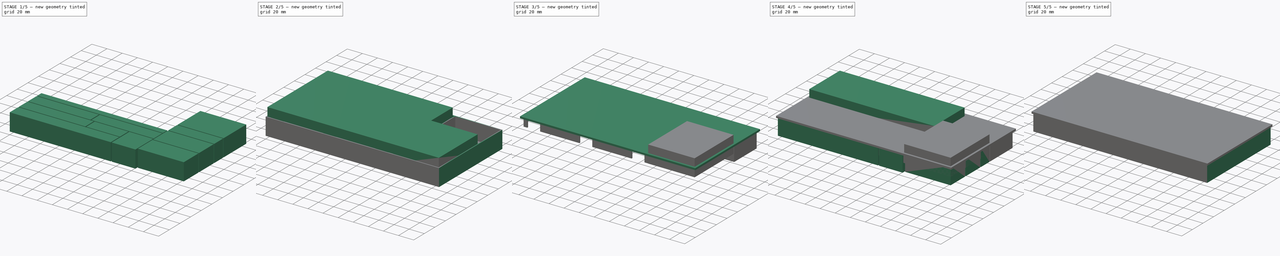
[diagram: build sequence overview — one tinted view per stage of 5, left to right]
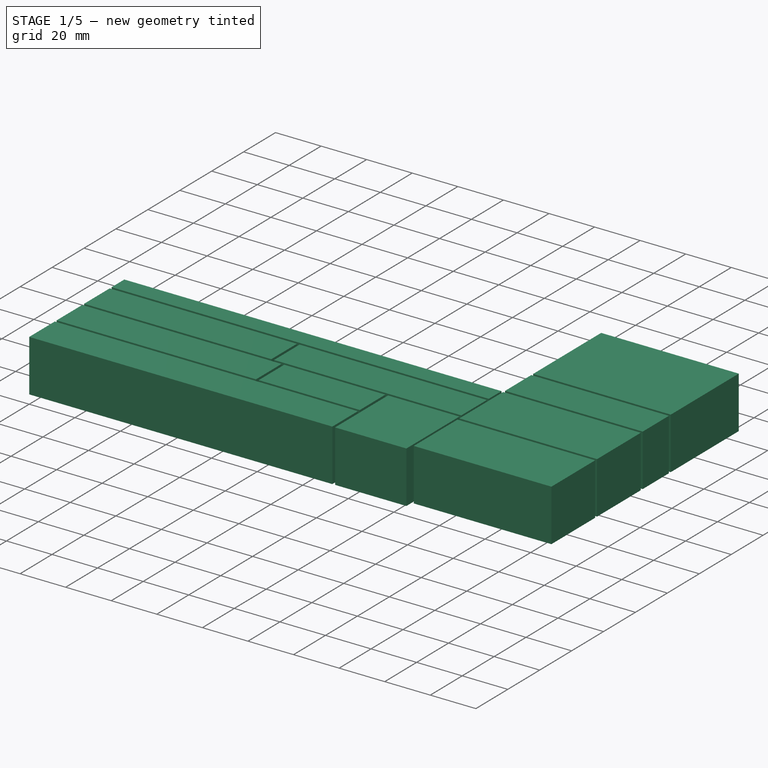
[diagram: stage 1 of 5 — iso view after this stage's code; geometry added in this stage tinted green]
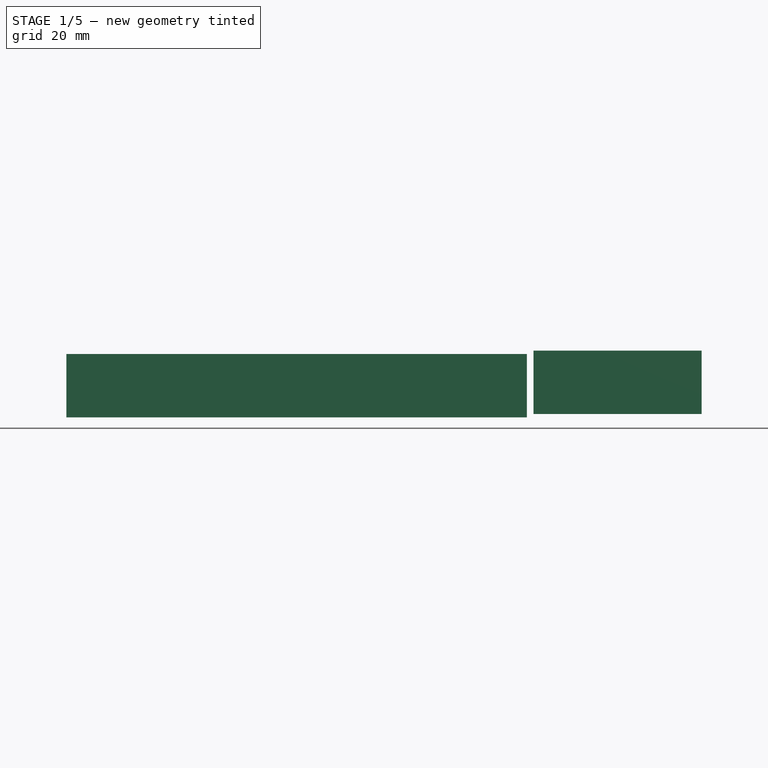
[diagram: stage 1 of 5 — front view after this stage's code; geometry added in this stage tinted green]
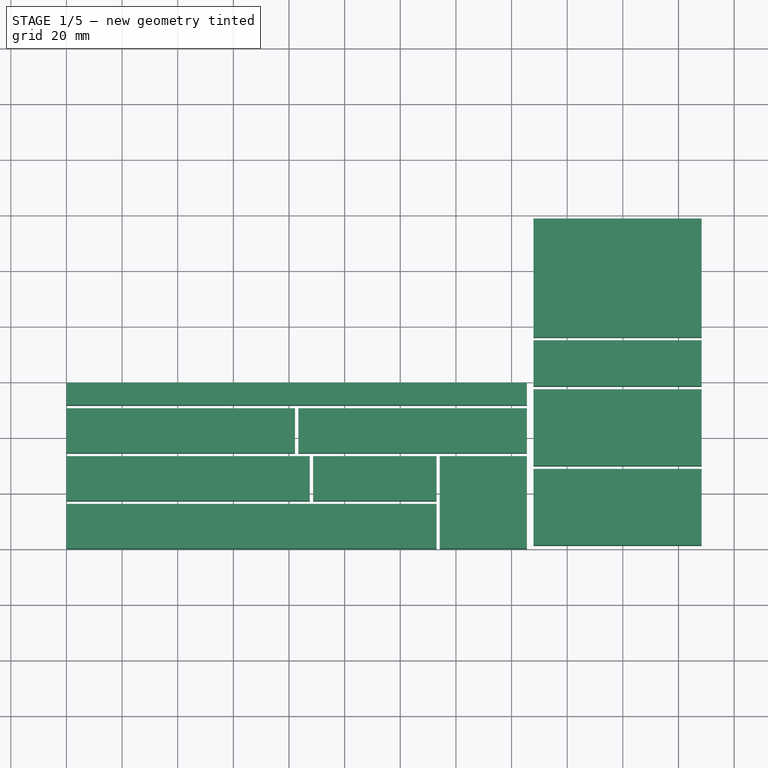
[diagram: stage 1 of 5 — top view after this stage's code; geometry added in this stage tinted green]
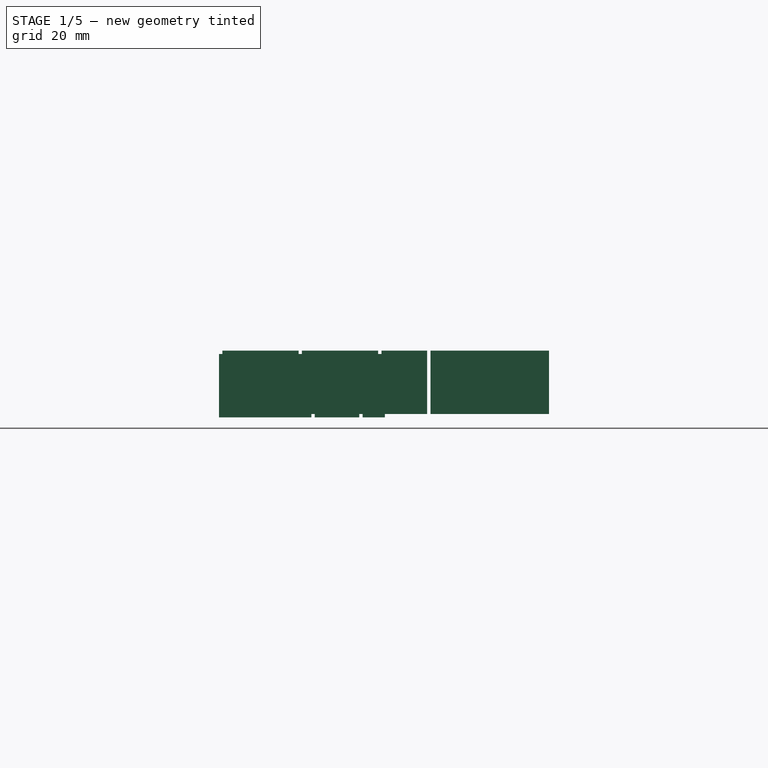
[diagram: stage 1 of 5 — right view after this stage's code; geometry added in this stage tinted green]
FCSTD DOCUMENT  (FreeCAD 0.17R13519 (Git))
Label: Breadboard Case
License: All rights reserved
LicenseURL: http://en.wikipedia.org/wiki/All_rights_reserved
objects: Part::Box×43, Part::MultiFuse×12, Part::Cut×2, Sketcher::SketchObject×2, Part::Extrusion×2, App::Part×2, Part::Common×1
note: 62 computed .brp shape members not serialized (recipe doc carries the construction recipe); baked Part::Feature solids carry a one-line shape summary decoded from their .brp

FEATURE [Part::Box] cube032
  AttacherType = Attacher::AttachEngine3D
  Height = 22.8
  Length = 133
  Width = 16
FEATURE [Part::Box] cube033
  AttacherType = Attacher::AttachEngine3D
  Height = 22.8
  Length = 87.4667
  Placement = pos=(0,17.2,0) rot=(0,0,1;0rad)
  Width = 16
FEATURE [Part::Box] cube034
  AttacherType = Attacher::AttachEngine3D
  Height = 22.8
  Length = 31.3
  Placement = pos=(134.2,0,0) rot=(0,0,1;0rad)
  Width = 33.2
FEATURE [Part::Box] cube035
  AttacherType = Attacher::AttachEngine3D
  Height = 22.8
  Length = 44.3333
  Placement = pos=(88.6667,17.2,0) rot=(0,0,1;0rad)
  Width = 16
FEATURE [Part::Box] cube036
  AttacherType = Attacher::AttachEngine3D
  Height = 22.8
  Length = 82.15
  Placement = pos=(0,34.4,0) rot=(0,0,1;0rad)
  Width = 16
FEATURE [Part::Box] cube037
  AttacherType = Attacher::AttachEngine3D
  Height = 22.8
  Length = 82.15
  Placement = pos=(83.35,34.4,0) rot=(0,0,1;0rad)
  Width = 16
FEATURE [Part::Box] cube038
  AttacherType = Attacher::AttachEngine3D
  Height = 22.8
  Length = 165.5
  Placement = pos=(0,51.6,0) rot=(0,0,1;0rad)
  Width = 8
FEATURE [Part::Box] cube039
  AttacherType = Attacher::AttachEngine3D
  Height = 22.8
  Length = 60.4
  Width = 27.4
FEATURE [Part::Box] cube040
  AttacherType = Attacher::AttachEngine3D
  Height = 22.8
  Length = 60.4
  Placement = pos=(0,28.6,0) rot=(0,0,1;0rad)
  Width = 27.4
FEATURE [Part::Box] cube041
  AttacherType = Attacher::AttachEngine3D
  Height = 22.8
  Length = 60.4
  Placement = pos=(0,57.2,0) rot=(0,0,1;0rad)
  Width = 16.4
FEATURE [Part::MultiFuse] Matrix_Union005
  Placement = pos=(167.9,1.2,1.2) rot=(0,0,1;0rad)
  Shapes = -> [cube039,cube040,cube041]
FEATURE [Part::Box] cube042
  AttacherType = Attacher::AttachEngine3D
  Height = 22.8
  Length = 60.4
  Placement = pos=(167.9,76,1.2) rot=(0,0,1;0rad)
  Width = 42.6
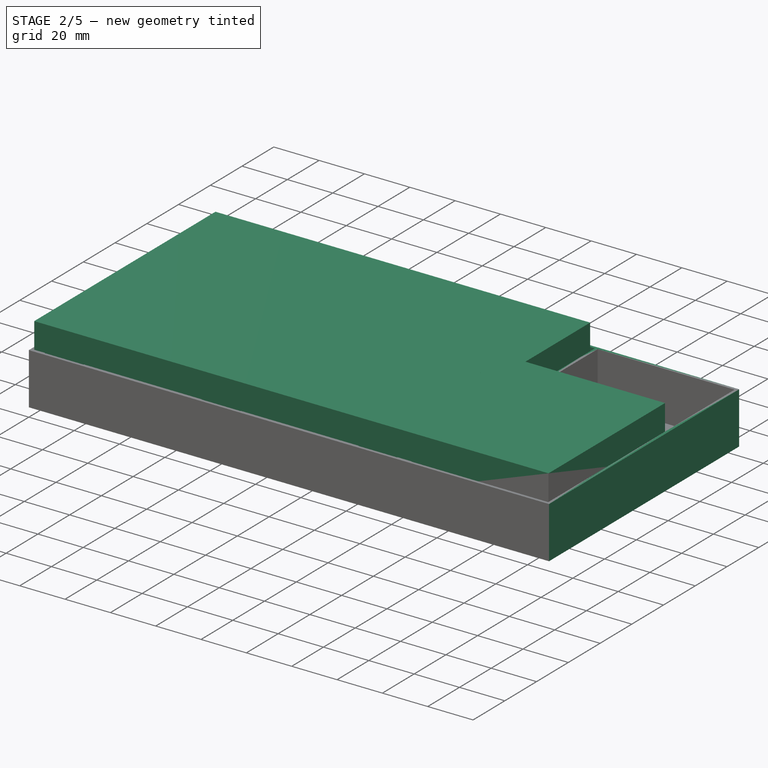
[diagram: stage 2 of 5 — iso view after this stage's code; geometry added in this stage tinted green]
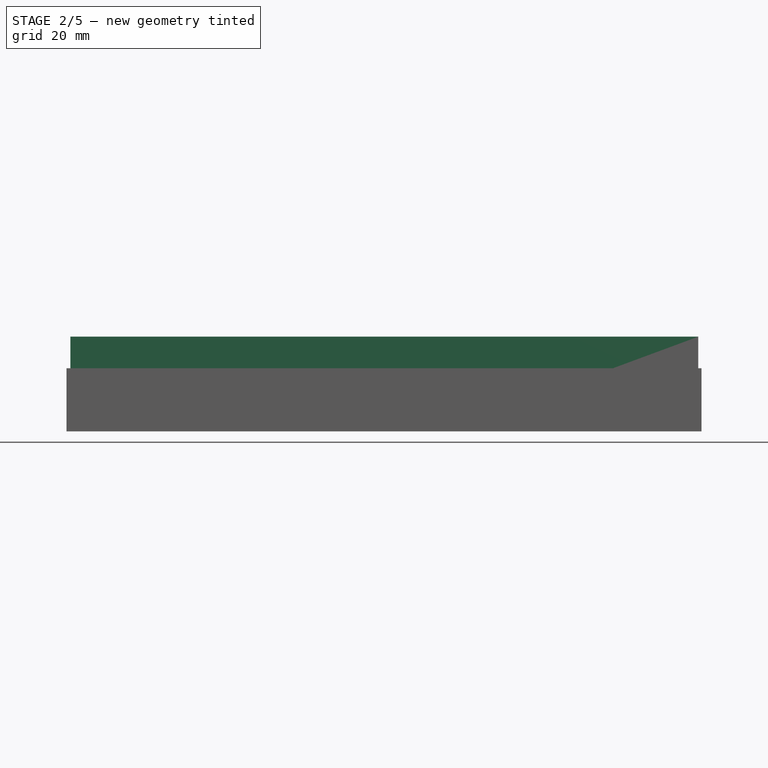
[diagram: stage 2 of 5 — front view after this stage's code; geometry added in this stage tinted green]
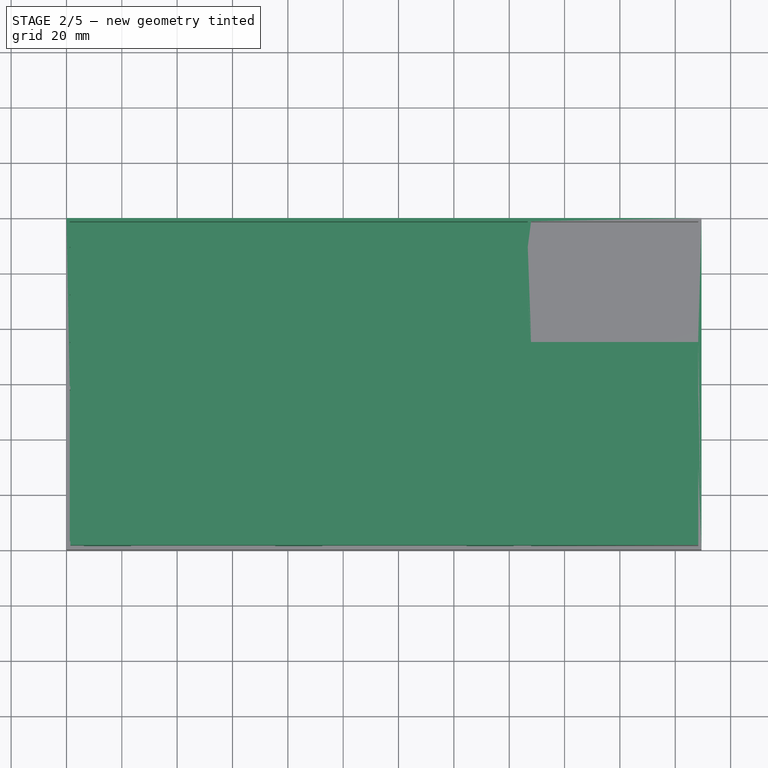
[diagram: stage 2 of 5 — top view after this stage's code; geometry added in this stage tinted green]
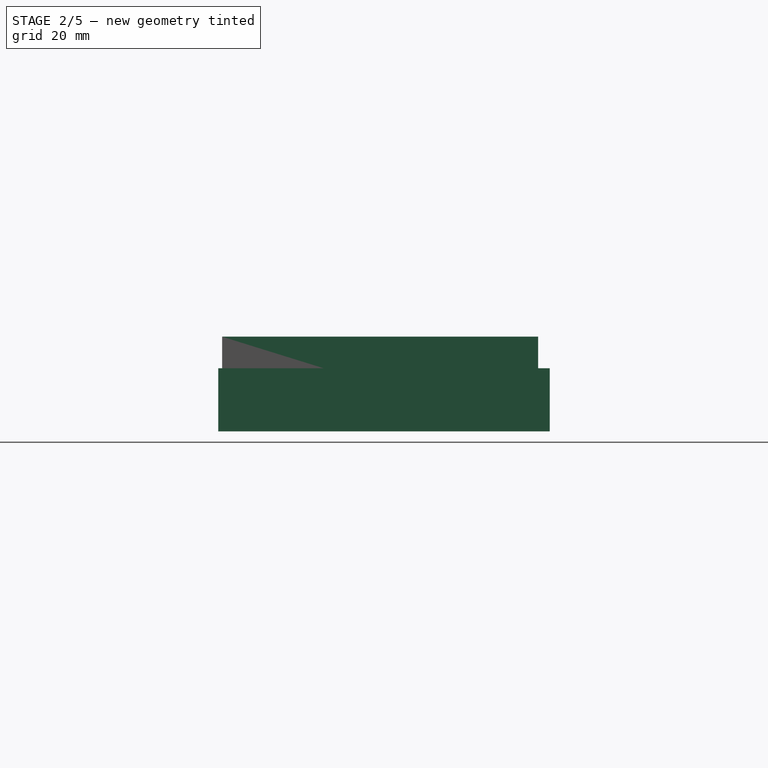
[diagram: stage 2 of 5 — right view after this stage's code; geometry added in this stage tinted green]
FEATURE [Part::Box] cube024
  AttacherType = Attacher::AttachEngine3D
  Height = 22.8
  Length = 165.3
  Placement = pos=(1.4,1.4,11.4) rot=(0,0,1;0rad)
  Width = 56.4
FEATURE [Part::Box] cube025
  AttacherType = Attacher::AttachEngine3D
  Height = 22.8
  Length = 165.3
  Placement = pos=(1.4,57.8,11.4) rot=(0,0,1;0rad)
  Width = 57.8
FEATURE [Part::Box] cube026
  AttacherType = Attacher::AttachEngine3D
  Height = 22.8
  Length = 61.6
  Placement = pos=(166.7,1.4,11.4) rot=(0,0,1;0rad)
  Width = 73.4
FEATURE [Part::Box] cube027
  AttacherType = Attacher::AttachEngine3D
  Height = 22.8
  Length = 229.5
  Width = 119.8
FEATURE [Part::Box] cube028
  AttacherType = Attacher::AttachEngine3D
  Height = 22.8
  Length = 165.5
  Width = 54.9
FEATURE [Part::Box] cube029
  AttacherType = Attacher::AttachEngine3D
  Height = 22.8
  Length = 17
  Placement = pos=(5.1,-1.7,0) rot=(0,0,1;0rad)
  Width = 1.7
FEATURE [Part::Box] cube030
  AttacherType = Attacher::AttachEngine3D
  Height = 22.8
  Length = 17
  Placement = pos=(74.25,-1.7,0) rot=(0,0,1;0rad)
  Width = 1.7
FEATURE [Part::Box] cube031
  AttacherType = Attacher::AttachEngine3D
  Height = 22.8
  Length = 17
  Placement = pos=(143.4,-1.7,0) rot=(0,0,1;0rad)
  Width = 1.7
FEATURE [Part::MultiFuse] Matrix_Union003
  Placement = pos=(1.2,2.9,1.2) rot=(0,0,1;0rad)
  Shapes = -> [cube028,cube029,cube030,cube031]
FEATURE [Part::MultiFuse] Matrix_Union004
  Placement = pos=(1.2,59,1.2) rot=(0,0,1;0rad)
  Shapes = -> [cube032,cube033,cube034,cube035,cube036,cube037,cube038]
FEATURE [Part::MultiFuse] union002
  Shapes = -> [Matrix_Union003,Matrix_Union004,Matrix_Union005,cube042]
FEATURE [Part::Cut] difference001
  Base = -> cube027
  Tool = -> union002
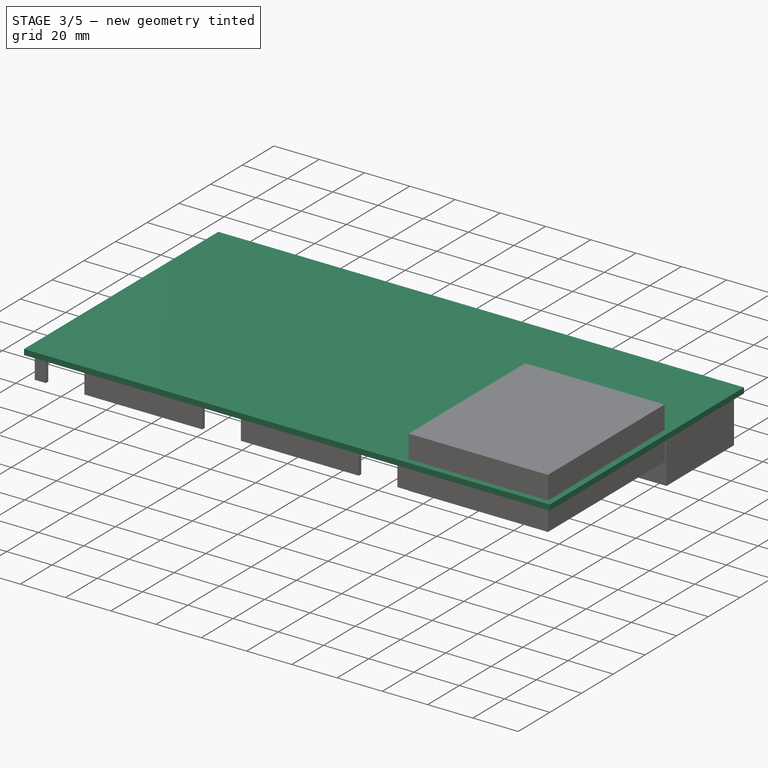
[diagram: stage 3 of 5 — iso view after this stage's code; geometry added in this stage tinted green]
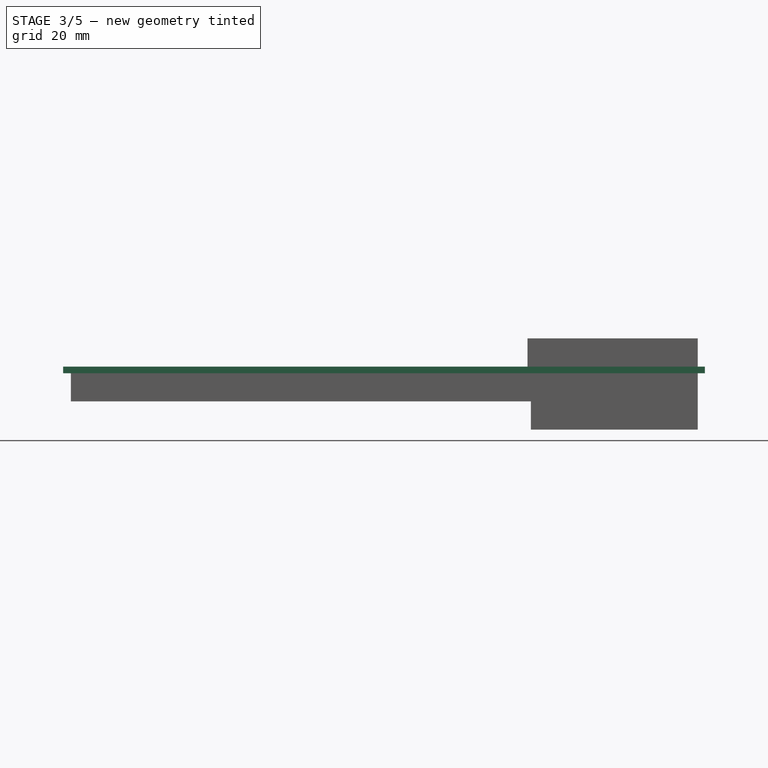
[diagram: stage 3 of 5 — front view after this stage's code; geometry added in this stage tinted green]
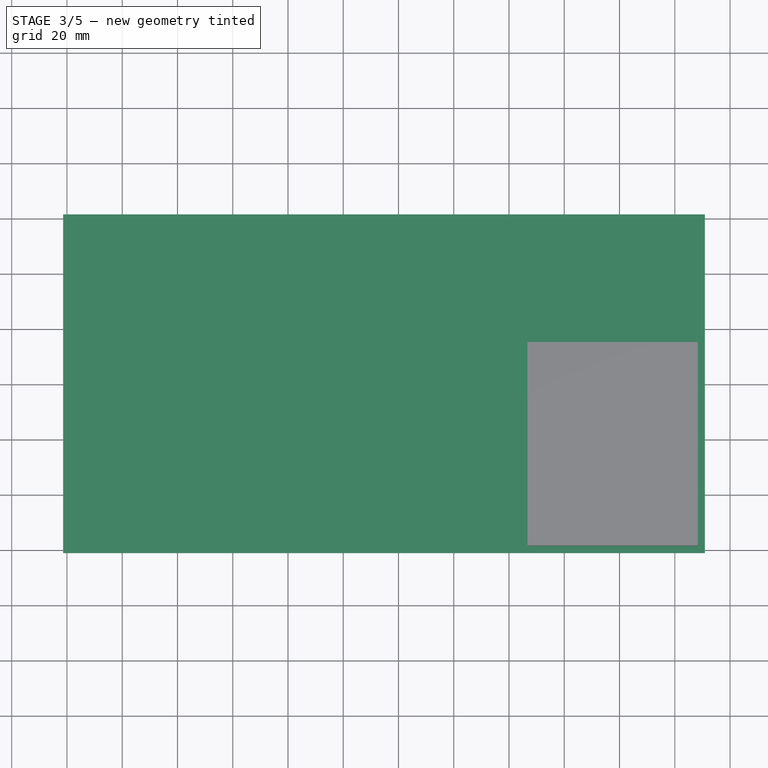
[diagram: stage 3 of 5 — top view after this stage's code; geometry added in this stage tinted green]
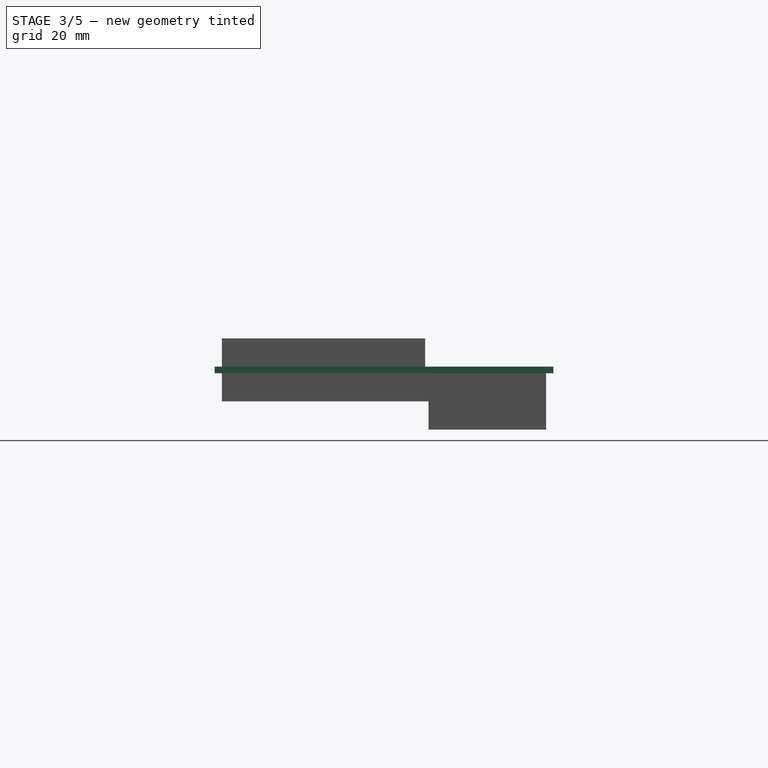
[diagram: stage 3 of 5 — right view after this stage's code; geometry added in this stage tinted green]
FEATURE [Part::Box] cube017
  AttacherType = Attacher::AttachEngine3D
  Height = 22.8
  Length = 61.6
  Placement = pos=(166.7,1.2,11.4) rot=(0,0,1;0rad)
  Width = 73.6
FEATURE [Part::Box] cube018
  AttacherType = Attacher::AttachEngine3D
  Height = 22.8
  Length = 60.4
  Placement = pos=(167.9,76,1.2) rot=(0,0,1;0rad)
  Width = 42.6
FEATURE [Part::Box] cube019
  AttacherType = Attacher::AttachEngine3D
  Height = 1.2
  Length = 232.3
  Placement = pos=(-1.4,-1.4,22.8) rot=(0,0,1;0rad)
  Width = 122.6
FEATURE [Part::Box] cube020
  AttacherType = Attacher::AttachEngine3D
  Height = 1.2
  Length = 232.3
  Placement = pos=(-1.4,-1.4,21.6) rot=(0,0,1;0rad)
  Width = 1.2
FEATURE [Part::Box] cube021
  AttacherType = Attacher::AttachEngine3D
  Height = 1.2
  Length = 1.2
  Placement = pos=(-1.4,-1.4,21.6) rot=(0,0,1;0rad)
  Width = 122.6
FEATURE [Part::Box] cube022
  AttacherType = Attacher::AttachEngine3D
  Height = 1.2
  Length = 232.3
  Placement = pos=(-1.4,120,21.6) rot=(0,0,1;0rad)
  Width = 1.2
FEATURE [Part::Box] cube023
  AttacherType = Attacher::AttachEngine3D
  Height = 1.2
  Length = 1.2
  Placement = pos=(229.7,-1.4,21.6) rot=(0,0,1;0rad)
  Width = 122.6
FEATURE [Part::MultiFuse] union001
  Shapes = -> [cube024,cube025,cube026]
FEATURE [Part::Common] intersection
  Base = -> union001
  Tool = -> difference001
FEATURE [Part::MultiFuse] Group
  Shapes = -> [cube019,cube020,cube021,cube022,cube023,intersection]
FEATURE [App::Part] Part  label="Box"
  Group = -> [difference,cube003,cube017,cube015,cube014,cube008,cube007,cube004,cube013,cube018,cube012,cube001,cube010,cube006,cube,Extrude,cube005,Sketch,cube016,cube009,cube002,cube011,Matrix_Union002,union,Matrix_Union,Matrix_Union001,Fusion]
  License = CC BY 3.0
  LicenseURL = http://creativecommons.org/licenses/by/3.0/
  Origin = -> Origin
FEATURE [Sketcher::SketchObject] Sketch001
  ExternalGeometry = -> [Group]
  MapMode = 5
  Placement = pos=(-0.2,0,0) rot=(0.57735,0.57735,0.57735;2.0944rad)
  Support = -> [Group]
  sketch-geometry (4):
    g0: ArcOfCircle CenterX=120 CenterY=21.85 CenterZ=0 NormalX=0 NormalY=0 NormalZ=1 AngleXU=0 Radius=0.25 StartAngle=1.5708 EndAngle=4.71239
    g1: LineSegment StartX=120 StartY=22.1 StartZ=0 EndX=120 EndY=21.6 EndZ=0
    g2: ArcOfCircle CenterX=-0.2 CenterY=21.85 CenterZ=0 NormalX=0 NormalY=0 NormalZ=1 AngleXU=0 Radius=0.25 StartAngle=4.71239 EndAngle=7.85398
    g3: LineSegment StartX=-0.2 StartY=22.1 StartZ=0 EndX=-0.2 EndY=21.6 EndZ=0
  constraints (12):
    c: Coincident(g0,g-4)
    c: PointOnObject(g0,g-4)
    c: PointOnObject(g0,g-4)
    c: Radius(g0) = 0.25
    c: Coincident(g1,g0)
    c: Coincident(g1,g0)
    c: PointOnObject(g2,g-3)
    c: Coincident(g2,g-3)
    c: PointOnObject(g2,g-3)
    c: Radius(g2) = 0.25
    c: Coincident(g3,g2)
    c: Coincident(g3,g-3)
FEATURE [Part::Extrusion] Extrude001
  Base = -> Sketch001
  Dir = (1,0,0)
  DirMode = 2
  FaceMakerClass = Part::FaceMakerBullseye
  LengthFwd = 229.9
  LengthRev = 0
  Solid = true
  Symmetric = false
FEATURE [Part::MultiFuse] Fusion001
  Shapes = -> [Group,Extrude001]
FEATURE [App::Part] Part001  label="Lid"
  Group = -> [cube031,cube028,cube037,cube033,cube029,cube022,cube025,cube036,cube019,cube039,cube040,cube032,cube023,cube024,cube021,cube027,cube030,cube026,cube041,cube038,cube020,cube035,union002,intersection,union001,difference001,Matrix_Union003,Matrix_Union005,Matrix_Union004,cube034,cube042,Group,Sketch001,Extrude001,Fusion001]
  License = CC BY 3.0
  LicenseURL = http://creativecommons.org/licenses/by/3.0/
  Origin = -> Origin001
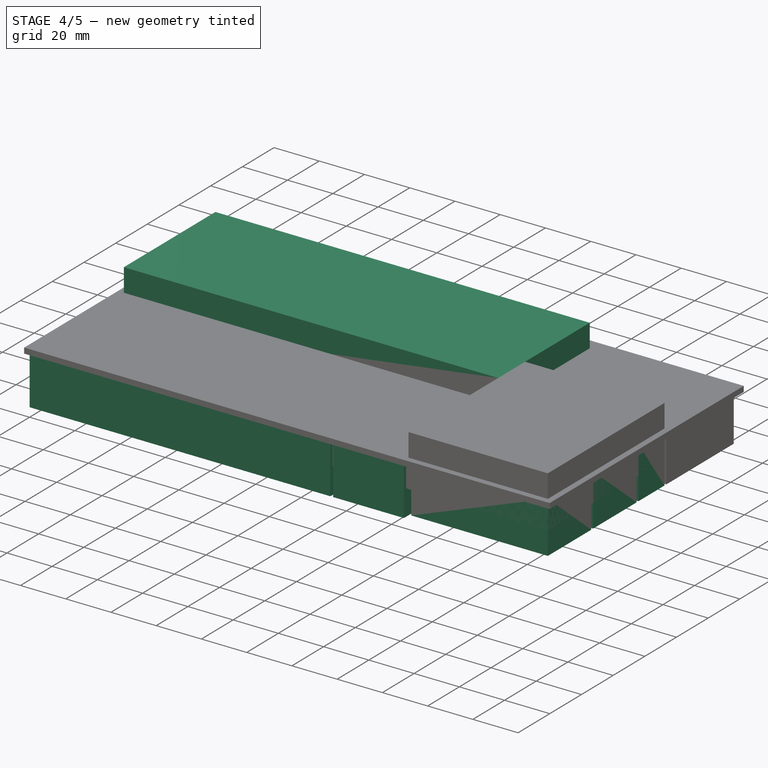
[diagram: stage 4 of 5 — iso view after this stage's code; geometry added in this stage tinted green]
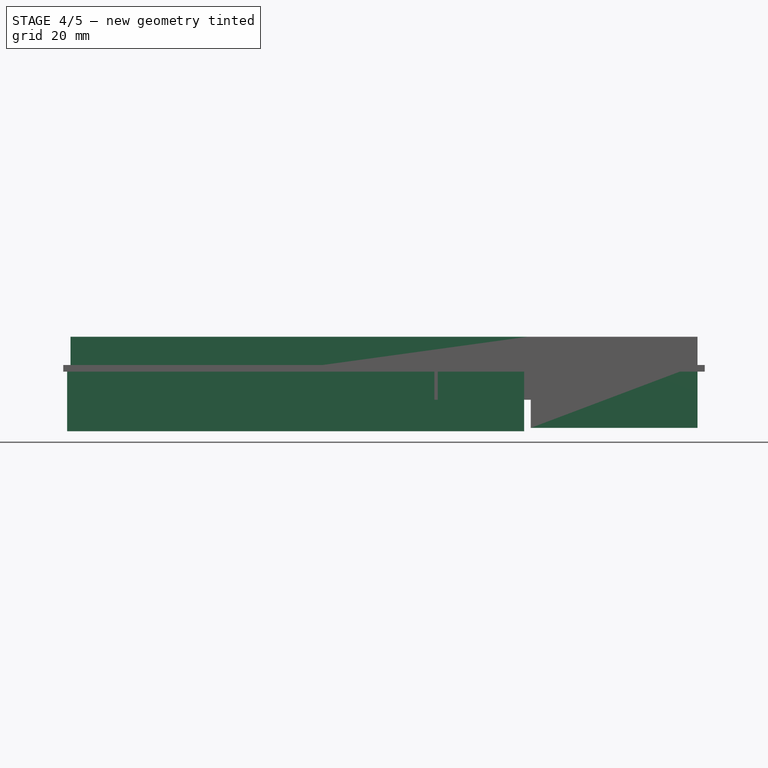
[diagram: stage 4 of 5 — front view after this stage's code; geometry added in this stage tinted green]
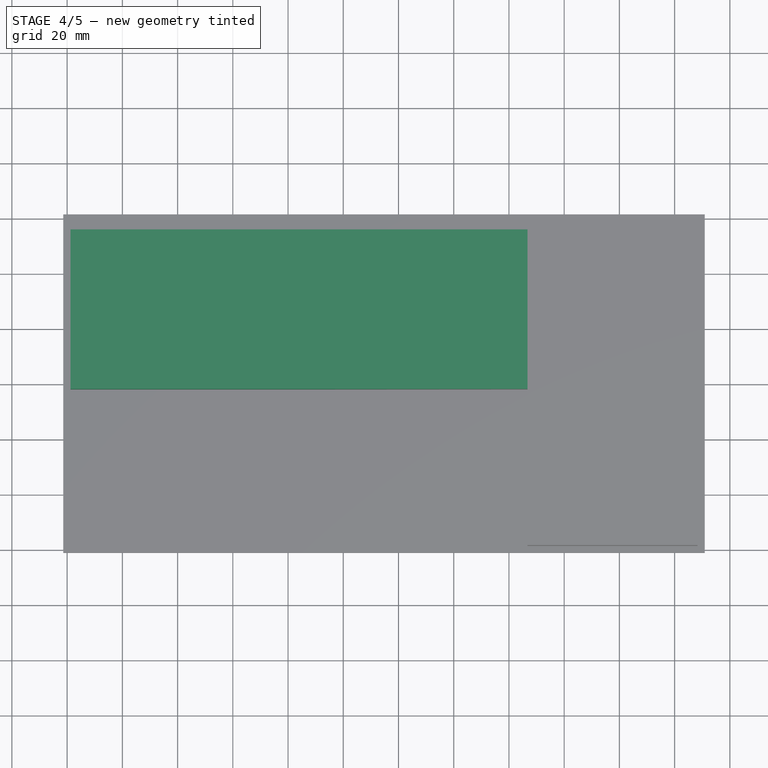
[diagram: stage 4 of 5 — top view after this stage's code; geometry added in this stage tinted green]
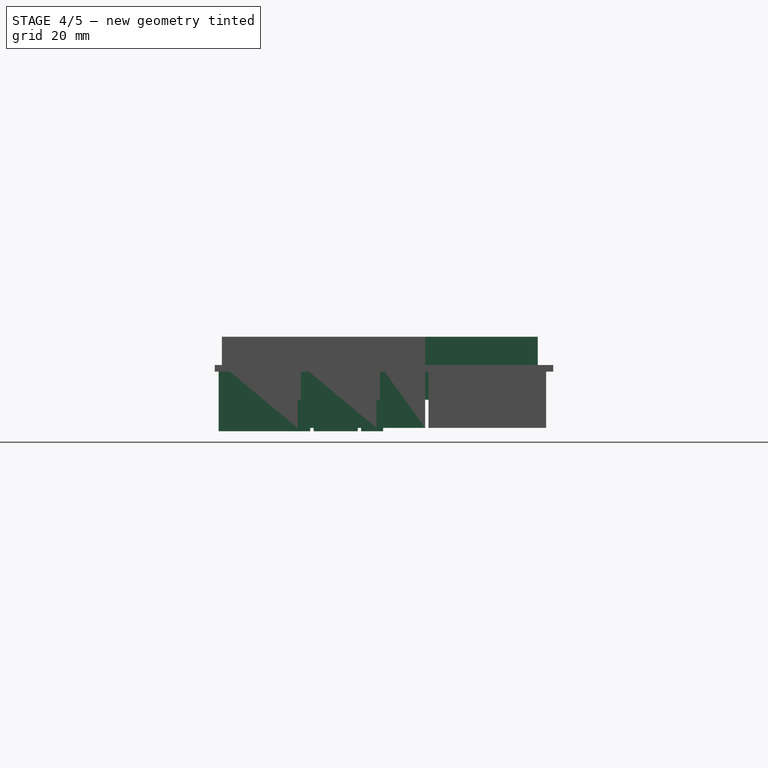
[diagram: stage 4 of 5 — right view after this stage's code; geometry added in this stage tinted green]
FEATURE [Part::Box] cube006
  AttacherType = Attacher::AttachEngine3D
  Height = 22.8
  Length = 133
  Width = 16
FEATURE [Part::Box] cube007
  AttacherType = Attacher::AttachEngine3D
  Height = 22.8
  Length = 87.4667
  Placement = pos=(0,17.2,0) rot=(0,0,1;0rad)
  Width = 16
FEATURE [Part::Box] cube008
  AttacherType = Attacher::AttachEngine3D
  Height = 22.8
  Length = 31.3
  Placement = pos=(134.2,0,0) rot=(0,0,1;0rad)
  Width = 33.2
FEATURE [Part::Box] cube009
  AttacherType = Attacher::AttachEngine3D
  Height = 22.8
  Length = 44.3333
  Placement = pos=(88.6667,17.2,0) rot=(0,0,1;0rad)
  Width = 16
FEATURE [Part::Box] cube010
  AttacherType = Attacher::AttachEngine3D
  Height = 22.8
  Length = 82.15
  Placement = pos=(0,34.4,0) rot=(0,0,1;0rad)
  Width = 16
FEATURE [Part::Box] cube011
  AttacherType = Attacher::AttachEngine3D
  Height = 22.8
  Length = 82.15
  Placement = pos=(83.35,34.4,0) rot=(0,0,1;0rad)
  Width = 16
FEATURE [Part::Box] cube012
  AttacherType = Attacher::AttachEngine3D
  Height = 22.8
  Length = 165.5
  Placement = pos=(0,51.6,0) rot=(0,0,1;0rad)
  Width = 8
FEATURE [Part::Box] cube013
  AttacherType = Attacher::AttachEngine3D
  Height = 22.8
  Length = 165.5
  Placement = pos=(1.2,57.8,11.4) rot=(0,0,1;0rad)
  Width = 57.8
FEATURE [Part::Box] cube014
  AttacherType = Attacher::AttachEngine3D
  Height = 22.8
  Length = 60.4
  Width = 27.4
FEATURE [Part::Box] cube015
  AttacherType = Attacher::AttachEngine3D
  Height = 22.8
  Length = 60.4
  Placement = pos=(0,28.6,0) rot=(0,0,1;0rad)
  Width = 27.4
FEATURE [Part::Box] cube016
  AttacherType = Attacher::AttachEngine3D
  Height = 22.8
  Length = 60.4
  Placement = pos=(0,57.2,0) rot=(0,0,1;0rad)
  Width = 16.4
FEATURE [Part::MultiFuse] Matrix_Union002
  Placement = pos=(167.9,1.2,1.2) rot=(0,0,1;0rad)
  Shapes = -> [cube014,cube015,cube016]
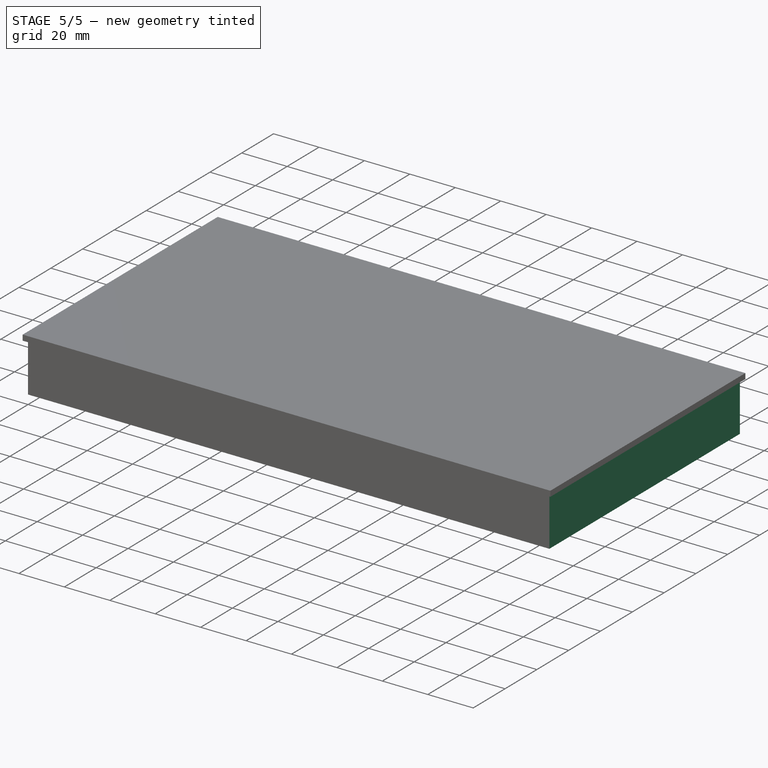
[diagram: stage 5 of 5 — iso view after this stage's code; geometry added in this stage tinted green]
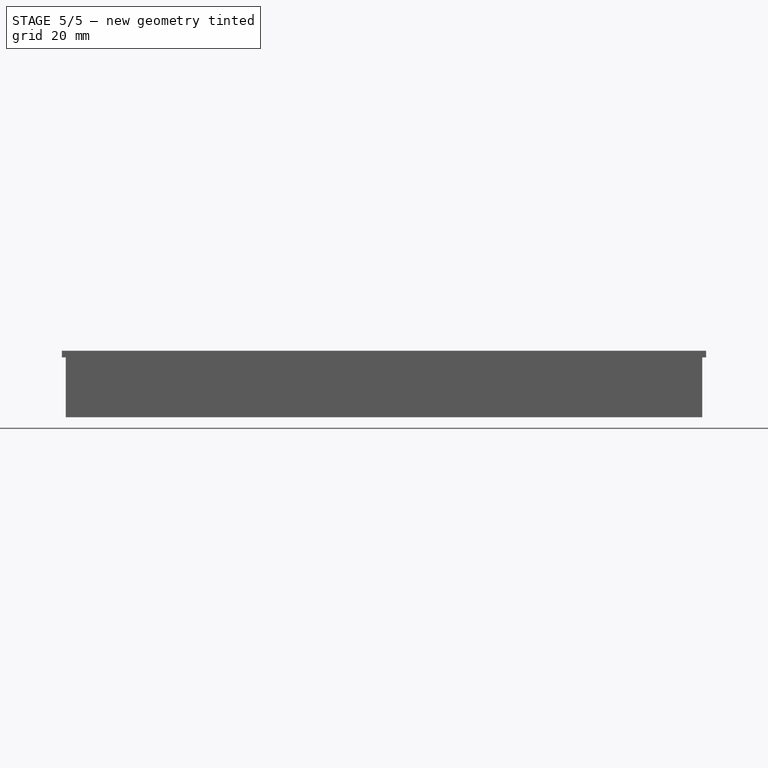
[diagram: stage 5 of 5 — front view after this stage's code; geometry added in this stage tinted green]
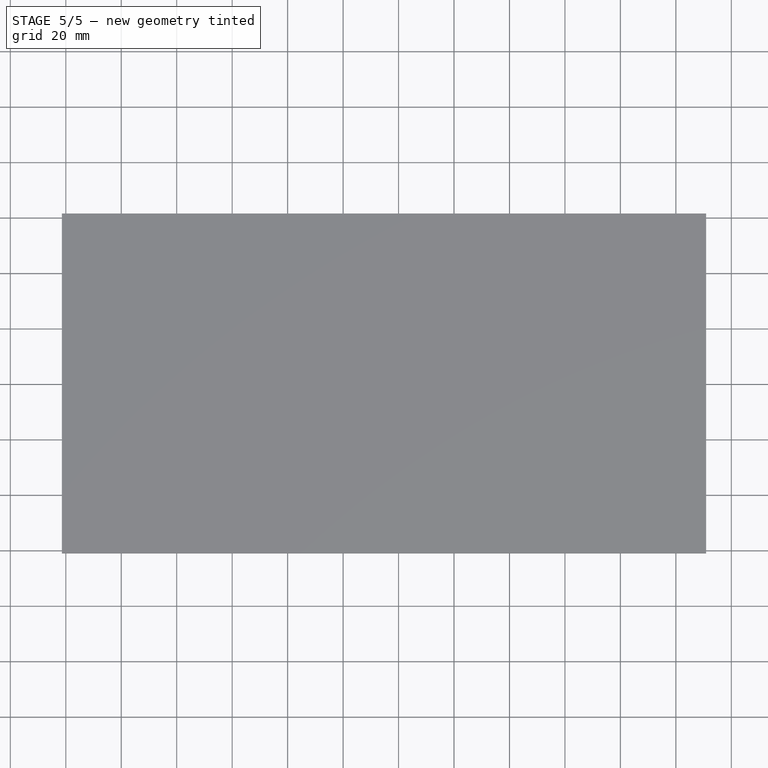
[diagram: stage 5 of 5 — top view after this stage's code; geometry added in this stage tinted green]
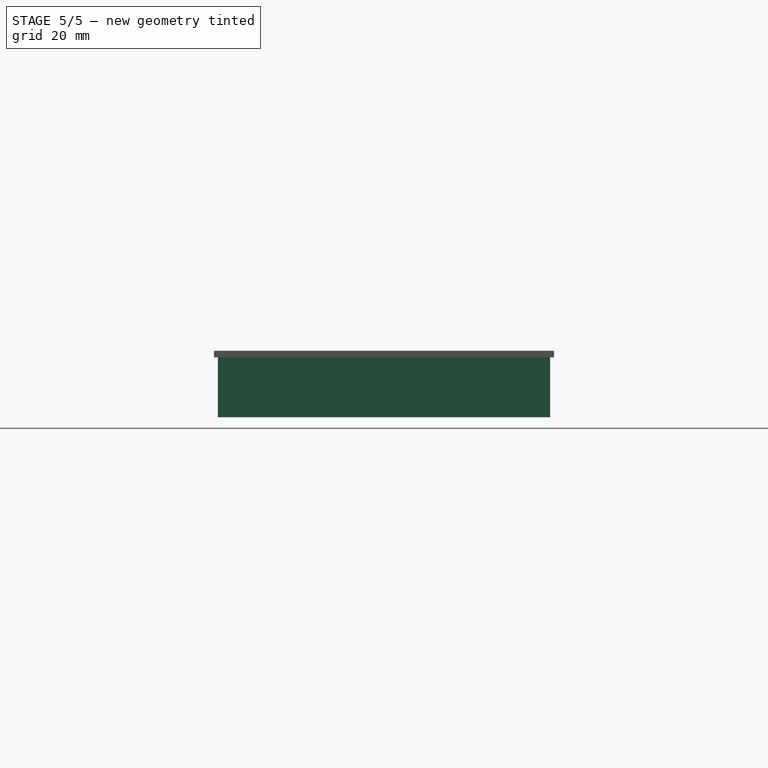
[diagram: stage 5 of 5 — right view after this stage's code; geometry added in this stage tinted green]
FEATURE [Part::Box] cube
  AttacherType = Attacher::AttachEngine3D
  Height = 22.8
  Length = 229.5
  Width = 119.8
FEATURE [Part::Box] cube001
  AttacherType = Attacher::AttachEngine3D
  Height = 22.8
  Length = 165.5
  Width = 54.9
FEATURE [Part::Box] cube002
  AttacherType = Attacher::AttachEngine3D
  Height = 22.8
  Length = 17
  Placement = pos=(5.1,-1.7,0) rot=(0,0,1;0rad)
  Width = 1.7
FEATURE [Part::Box] cube003
  AttacherType = Attacher::AttachEngine3D
  Height = 22.8
  Length = 17
  Placement = pos=(74.25,-1.7,0) rot=(0,0,1;0rad)
  Width = 1.7
FEATURE [Part::Box] cube004
  AttacherType = Attacher::AttachEngine3D
  Height = 22.8
  Length = 17
  Placement = pos=(143.4,-1.7,0) rot=(0,0,1;0rad)
  Width = 1.7
FEATURE [Part::MultiFuse] Matrix_Union
  Placement = pos=(1.2,2.9,1.2) rot=(0,0,1;0rad)
  Shapes = -> [cube001,cube002,cube003,cube004]
FEATURE [Part::Box] cube005
  AttacherType = Attacher::AttachEngine3D
  Height = 22.8
  Length = 165.5
  Placement = pos=(1.2,1.2,11.4) rot=(0,0,1;0rad)
  Width = 56.6
FEATURE [Part::MultiFuse] Matrix_Union001
  Placement = pos=(1.2,59,1.2) rot=(0,0,1;0rad)
  Shapes = -> [cube006,cube007,cube008,cube009,cube010,cube011,cube012]
FEATURE [Part::MultiFuse] union
  Shapes = -> [Matrix_Union,cube005,Matrix_Union001,cube013,Matrix_Union002,cube017,cube018]
FEATURE [Part::Cut] difference
  Base = -> cube
  Tool = -> union
FEATURE [Sketcher::SketchObject] Sketch
  ExternalGeometry = -> [difference]
  MapMode = 5
  Placement = pos=(0,0,0) rot=(0.57735,-0.57735,-0.57735;2.0944rad)
  Support = -> [difference]
  sketch-geometry (4):
    g0: ArcOfCircle CenterX=0 CenterY=22.55 CenterZ=0 NormalX=0 NormalY=0 NormalZ=1 AngleXU=0 Radius=0.25 StartAngle=4.71239 EndAngle=7.85398
    g1: LineSegment StartX=0 StartY=22.8 StartZ=0 EndX=0 EndY=22.3 EndZ=0
    g2: ArcOfCircle CenterX=-119.8 CenterY=22.55 CenterZ=0 NormalX=0 NormalY=0 NormalZ=1 AngleXU=0 Radius=0.25 StartAngle=1.5708 EndAngle=4.71239
    g3: LineSegment StartX=-119.8 StartY=22.3 StartZ=0 EndX=-119.8 EndY=22.8 EndZ=0
  constraints (12):
    c: Coincident(g0,g-3)
    c: DistanceX(g0,g0) = 0
    c: Radius(g0) = 0.25
    c: PointOnObject(g0,g-3)
    c: Coincident(g1,g0)
    c: Coincident(g1,g0)
    c: Coincident(g2,g-4)
    c: PointOnObject(g2,g-4)
    c: DistanceX(g2,g2) = 0
    c: Radius(g2) = 0.25
    c: Coincident(g3,g2)
    c: Coincident(g3,g2)
FEATURE [Part::Extrusion] Extrude
  Base = -> Sketch
  Dir = (-1,0,0)
  DirMode = 2
  FaceMakerClass = Part::FaceMakerBullseye
  LengthFwd = 0
  LengthRev = 229.5
  Solid = true
  Symmetric = false
FEATURE [Part::MultiFuse] Fusion
  Shapes = -> [difference,Extrude]
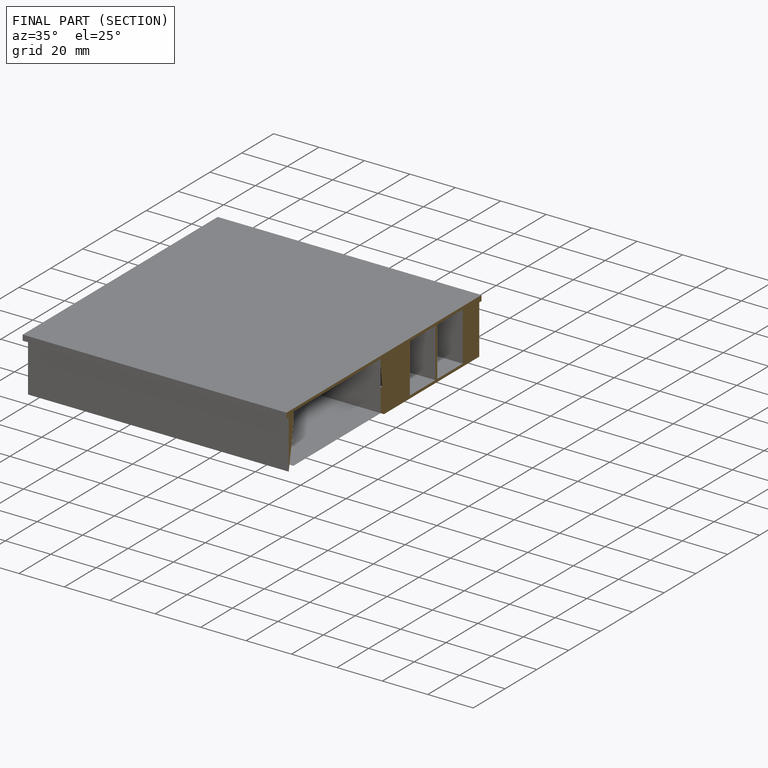
[diagram: finished part — half-section view (interior)]
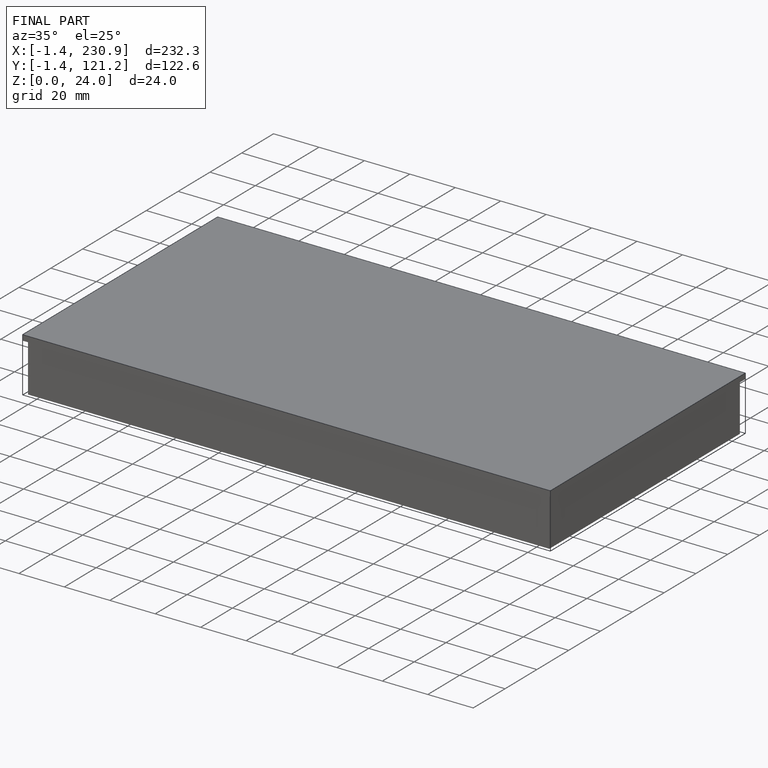
[diagram: finished part — iso view with bounding-box wireframe]
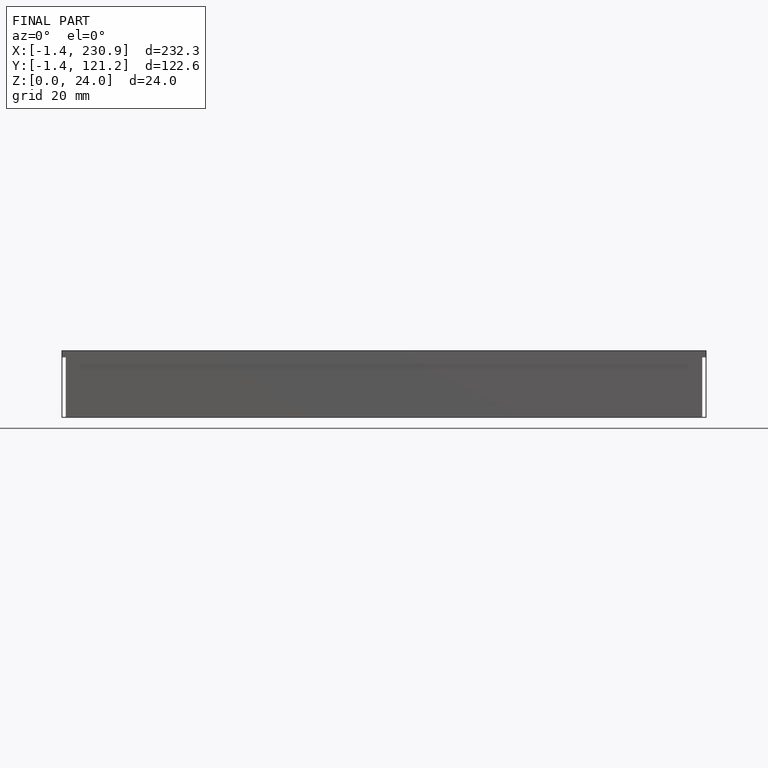
[diagram: finished part — front view with bounding-box wireframe]
